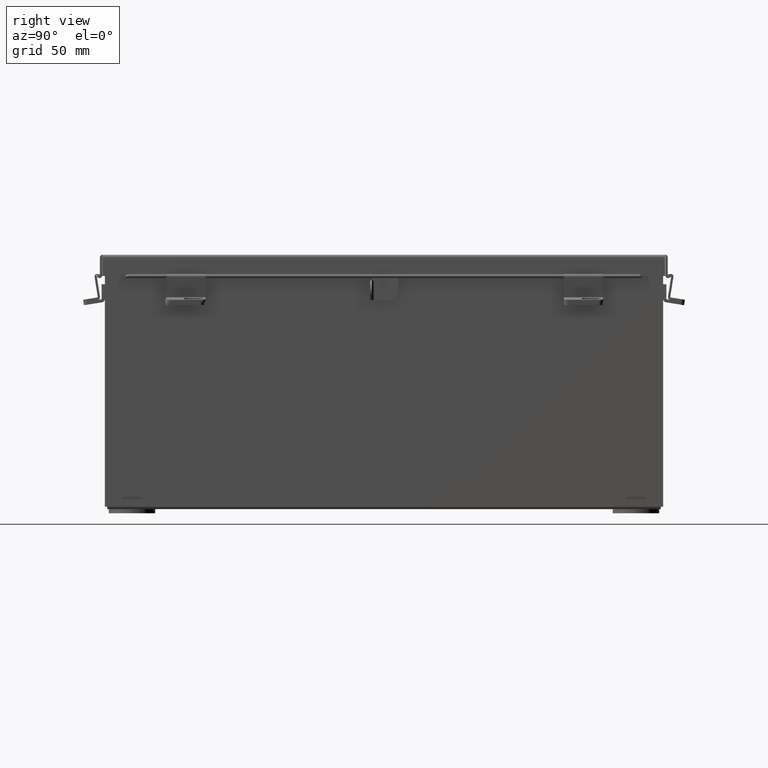
[diagram: clean part render]
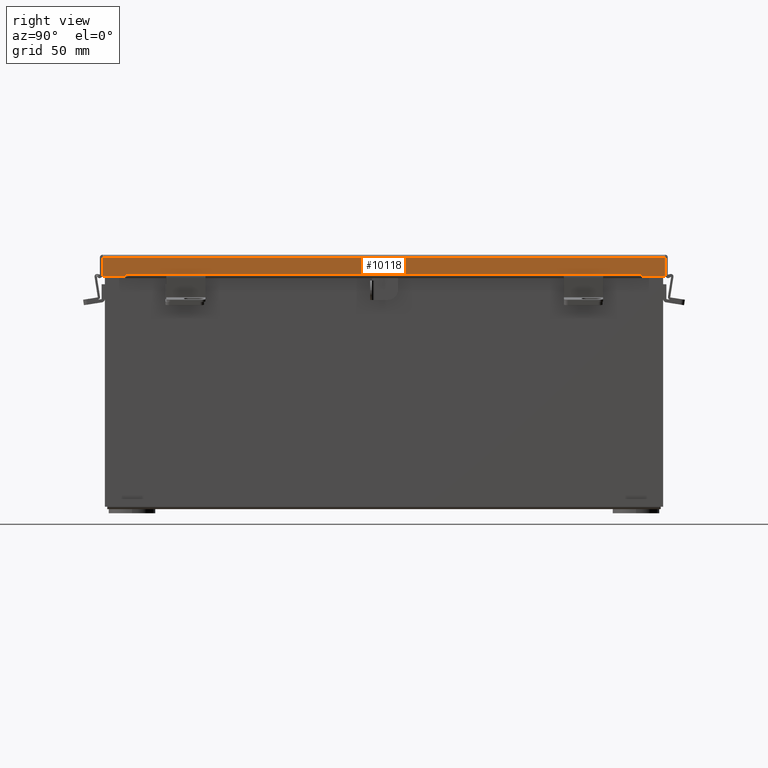
[diagram: same view with one face highlighted and labeled with its STEP entity id]
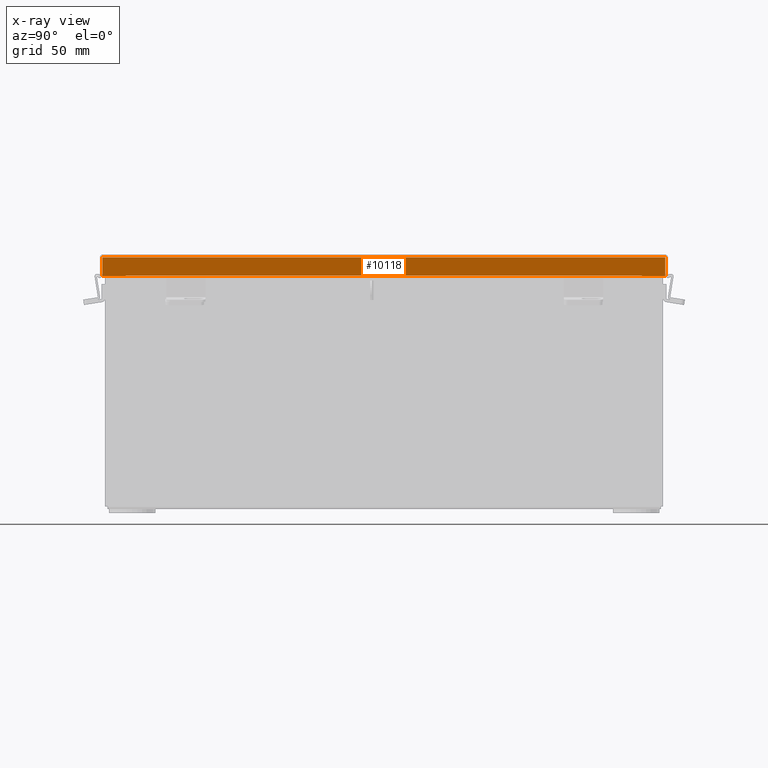
[diagram: x-ray of the same camera — body ghosted, the highlighted face saturated]
A machine part, right view. The second image highlights one B-rep face of the part: STEP entity #10118.
The next image is the same camera in x-ray: the body ghosted, the highlighted face saturated — about 0% of this face is hidden behind the body in this view.
In plain terms, the highlighted planar face has unit normal (-1, 0, -0).
Its self-contained STEP definition (entity closure, byte-faithful):
#392 = DIRECTION ( 'NONE',  ( -8.734826358065578900E-032, 1.000000000000000000, 2.983588252466091100E-017 ) ) ;
#487 = ORIENTED_EDGE ( 'NONE', *, *, #9493, .T. ) ;
#658 = VERTEX_POINT ( 'NONE', #7552 ) ;
#954 = LINE ( 'NONE', #2880, #8439 ) ;
#1082 = EDGE_CURVE ( 'NONE', #12300, #658, #2479, .T. ) ;
#1183 = VERTEX_POINT ( 'NONE', #19147 ) ;
#1565 = VERTEX_POINT ( 'NONE', #12476 ) ;
#1953 = VECTOR ( 'NONE', #11518, 39.37007874015748100 ) ;
#2379 = CARTESIAN_POINT ( 'NONE',  ( -4.156250000000002700, 8.324478932188132100, 0.5967115427318782100 ) ) ;
#2479 = LINE ( 'NONE', #7001, #9495 ) ;
#2797 = CARTESIAN_POINT ( 'NONE',  ( -4.156250000000002700, -4.802076551362963100E-018, 0.6123000000000005100 ) ) ;
#2880 = CARTESIAN_POINT ( 'NONE',  ( -4.156250000000005300, -9.074478932188133800, -1.420560956705417000E-014 ) ) ;
#3077 = DIRECTION ( 'NONE',  ( -3.569293475308526100E-015, -0.0000000000000000000, 1.000000000000000000 ) ) ;
#4276 = DIRECTION ( 'NONE',  ( 1.049351150792752600E-032, 1.000000000000000000, 0.0000000000000000000 ) ) ;
#4369 = ORIENTED_EDGE ( 'NONE', *, *, #17571, .T. ) ;
#5018 = EDGE_LOOP ( 'NONE', ( #18592, #4369, #17181, #10338, #487, #17114, #17901, #7834 ) ) ;
#6108 = DIRECTION ( 'NONE',  ( -1.049351150792752600E-032, -1.000000000000000000, -0.0000000000000000000 ) ) ;
#6429 = LINE ( 'NONE', #9350, #14788 ) ;
#6621 = CARTESIAN_POINT ( 'NONE',  ( -4.156250000000008000, -9.074478932188133800, 0.6123000000000005100 ) ) ;
#6769 = LINE ( 'NONE', #10538, #10295 ) ;
#6848 = LINE ( 'NONE', #10035, #1953 ) ;
#6957 = LINE ( 'NONE', #7628, #14384 ) ;
#7001 = CARTESIAN_POINT ( 'NONE',  ( -4.156250000000002700, -4.802076551362963100E-018, 0.6123000000000005100 ) ) ;
#7536 = VERTEX_POINT ( 'NONE', #10518 ) ;
#7550 = DIRECTION ( 'NONE',  ( -3.504962610060189500E-014, -7.009925220120379000E-014, 1.000000000000000000 ) ) ;
#7552 = CARTESIAN_POINT ( 'NONE',  ( -4.156250000000002700, -8.324478932188132100, 0.6123000000000005100 ) ) ;
#7628 = CARTESIAN_POINT ( 'NONE',  ( -4.156250000000003600, 8.324478932188132100, 0.5967115427318782100 ) ) ;
#7748 = CARTESIAN_POINT ( 'NONE',  ( -4.156250000000000900, -9.074478932188133800, 0.01300000000000010700 ) ) ;
#7834 = ORIENTED_EDGE ( 'NONE', *, *, #12058, .F. ) ;
#7907 = VECTOR ( 'NONE', #7550, 39.37007874015748100 ) ;
#8010 = EDGE_CURVE ( 'NONE', #1565, #16791, #6848, .T. ) ;
#8172 = LINE ( 'NONE', #2797, #15566 ) ;
#8363 = LINE ( 'NONE', #16405, #7907 ) ;
#8439 = VECTOR ( 'NONE', #10409, 39.37007874015748100 ) ;
#8571 = DIRECTION ( 'NONE',  ( 1.000000000000000000, 2.118147993147045500E-031, 3.569293475308526100E-015 ) ) ;
#9350 = CARTESIAN_POINT ( 'NONE',  ( -4.156249999999995600, 9.156250000000000000, 0.01300000000000010700 ) ) ;
#9493 = EDGE_CURVE ( 'NONE', #12225, #12300, #954, .T. ) ;
#9495 = VECTOR ( 'NONE', #15928, 39.37007874015748100 ) ;
#10035 = CARTESIAN_POINT ( 'NONE',  ( -4.156250000000005300, 8.324478932188132100, 0.6122999999999994000 ) ) ;
#10118 = ADVANCED_FACE ( 'NONE', ( #17939 ), #12988, .F. ) ;
#10295 = VECTOR ( 'NONE', #3077, 39.37007874015748100 ) ;
#10338 = ORIENTED_EDGE ( 'NONE', *, *, #13560, .F. ) ;
#10341 = EDGE_CURVE ( 'NONE', #7536, #11164, #6769, .T. ) ;
#10409 = DIRECTION ( 'NONE',  ( -3.569293475308526100E-015, 0.0000000000000000000, 1.000000000000000000 ) ) ;
#10518 = CARTESIAN_POINT ( 'NONE',  ( -4.156249999999995600, 9.074478932188133800, 0.01300000000000010700 ) ) ;
#10538 = CARTESIAN_POINT ( 'NONE',  ( -4.156250000000000900, 9.074478932188133800, 0.0000000000000000000 ) ) ;
#11164 = VERTEX_POINT ( 'NONE', #12381 ) ;
#11518 = DIRECTION ( 'NONE',  ( 1.051488783018093800E-013, 0.0000000000000000000, -1.000000000000000000 ) ) ;
#12058 = EDGE_CURVE ( 'NONE', #16791, #1183, #6957, .T. ) ;
#12225 = VERTEX_POINT ( 'NONE', #7748 ) ;
#12300 = VERTEX_POINT ( 'NONE', #6621 ) ;
#12381 = CARTESIAN_POINT ( 'NONE',  ( -4.156250000000002700, 9.074478932188133800, 0.6123000000000005100 ) ) ;
#12476 = CARTESIAN_POINT ( 'NONE',  ( -4.156250000000002700, 8.324478932188132100, 0.6123000000000005100 ) ) ;
#12988 = PLANE ( 'NONE',  #18277 ) ;
#13560 = EDGE_CURVE ( 'NONE', #12225, #7536, #6429, .T. ) ;
#14384 = VECTOR ( 'NONE', #6108, 39.37007874015748100 ) ;
#14788 = VECTOR ( 'NONE', #392, 39.37007874015748100 ) ;
#15566 = VECTOR ( 'NONE', #4276, 39.37007874015748100 ) ;
#15928 = DIRECTION ( 'NONE',  ( 1.049351150792752600E-032, 1.000000000000000000, 0.0000000000000000000 ) ) ;
#16405 = CARTESIAN_POINT ( 'NONE',  ( -4.156250000000003600, -8.324478932188130300, 0.5967115427318782100 ) ) ;
#16791 = VERTEX_POINT ( 'NONE', #2379 ) ;
#17114 = ORIENTED_EDGE ( 'NONE', *, *, #1082, .T. ) ;
#17181 = ORIENTED_EDGE ( 'NONE', *, *, #10341, .F. ) ;
#17449 = CARTESIAN_POINT ( 'NONE',  ( -4.156250000000000900, 0.0000000000000000000, -1.420560956705417000E-014 ) ) ;
#17571 = EDGE_CURVE ( 'NONE', #1565, #11164, #8172, .T. ) ;
#17901 = ORIENTED_EDGE ( 'NONE', *, *, #18287, .F. ) ;
#17939 = FACE_OUTER_BOUND ( 'NONE', #5018, .T. ) ;
#18277 = AXIS2_PLACEMENT_3D ( 'NONE', #17449, #8571, #18950 ) ;
#18287 = EDGE_CURVE ( 'NONE', #1183, #658, #8363, .T. ) ;
#18592 = ORIENTED_EDGE ( 'NONE', *, *, #8010, .F. ) ;
#18950 = DIRECTION ( 'NONE',  ( 3.569293475308526100E-015, 0.0000000000000000000, -1.000000000000000000 ) ) ;
#19147 = CARTESIAN_POINT ( 'NONE',  ( -4.156250000000002700, -8.324478932188130300, 0.5967115427318782100 ) ) ;